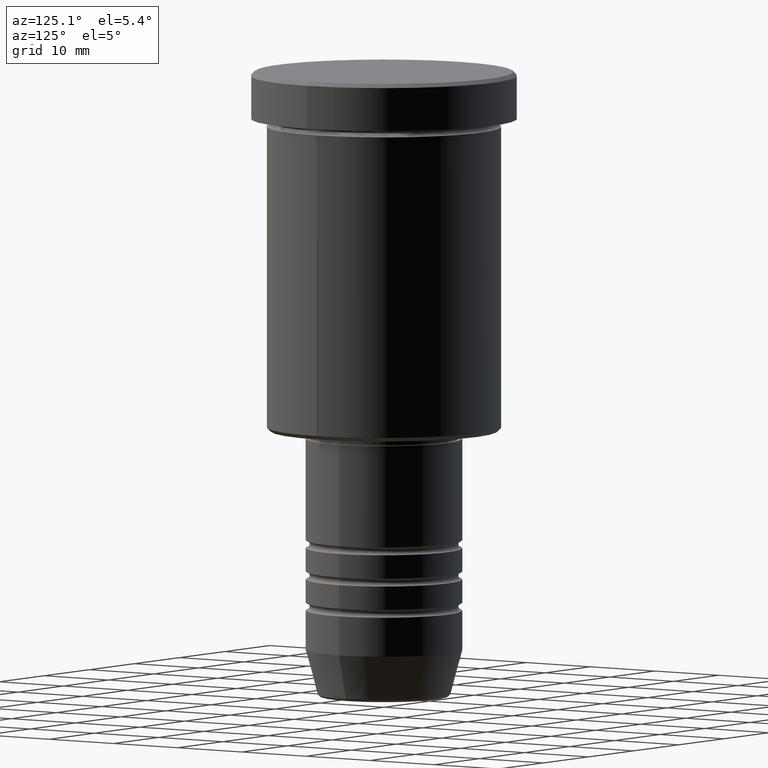
[diagram: clean part render]
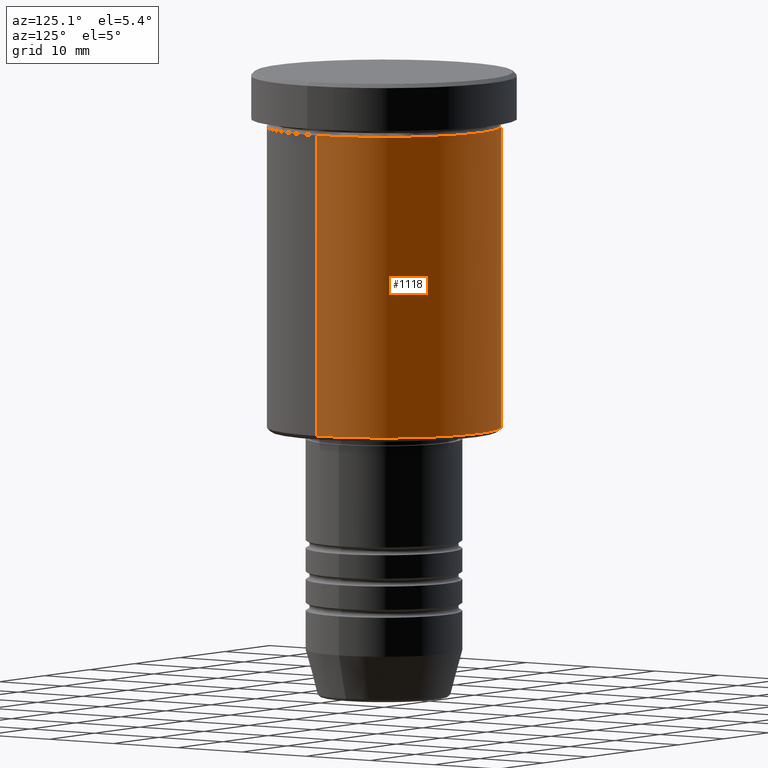
[diagram: same view with one face highlighted and labeled with its STEP entity id]
A machine part, auxiliary view. The second image highlights one B-rep face of the part: STEP entity #1118.
In plain terms, the highlighted cylindrical surface (partial cylindrical patch) has radius 15 mm, axis along (-0, -0, 1).
Its self-contained STEP definition (entity closure, byte-faithful):
#1 = EDGE_CURVE ( 'NONE', #1134, #399, #125, .T. ) ;
#26 = CIRCLE ( 'NONE', #527, 15.00000000000000000 ) ;
#51 = EDGE_CURVE ( 'NONE', #1134, #246, #26, .T. ) ;
#61 = AXIS2_PLACEMENT_3D ( 'NONE', #133, #440, #813 ) ;
#66 = CARTESIAN_POINT ( 'NONE',  ( -15.00000000000000000, 1.836970198721029589E-15, -45.50000000000000000 ) ) ;
#82 = LINE ( 'NONE', #549, #483 ) ;
#113 = FACE_OUTER_BOUND ( 'NONE', #771, .T. ) ;
#125 = LINE ( 'NONE', #887, #959 ) ;
#128 = CARTESIAN_POINT ( 'NONE',  ( 15.00000000000000000, 0.000000000000000000, -45.50000000000000000 ) ) ;
#133 = CARTESIAN_POINT ( 'NONE',  ( 0.000000000000000000, 0.000000000000000000, -6.999999999999995559 ) ) ;
#210 = DIRECTION ( 'NONE',  ( 1.000000000000000000, 0.000000000000000000, 0.000000000000000000 ) ) ;
#237 = ORIENTED_EDGE ( 'NONE', *, *, #51, .T. ) ;
#246 = VERTEX_POINT ( 'NONE', #66 ) ;
#303 = DIRECTION ( 'NONE',  ( -0.000000000000000000, -0.000000000000000000, 1.000000000000000000 ) ) ;
#379 = VERTEX_POINT ( 'NONE', #495 ) ;
#394 = CYLINDRICAL_SURFACE ( 'NONE', #859, 15.00000000000000000 ) ;
#399 = VERTEX_POINT ( 'NONE', #948 ) ;
#440 = DIRECTION ( 'NONE',  ( -0.000000000000000000, -0.000000000000000000, 1.000000000000000000 ) ) ;
#483 = VECTOR ( 'NONE', #905, 1000.000000000000000 ) ;
#495 = CARTESIAN_POINT ( 'NONE',  ( -15.00000000000000000, 1.836970198721029589E-15, -6.999999999999995559 ) ) ;
#527 = AXIS2_PLACEMENT_3D ( 'NONE', #1174, #550, #1078 ) ;
#530 = ORIENTED_EDGE ( 'NONE', *, *, #1006, .T. ) ;
#549 = CARTESIAN_POINT ( 'NONE',  ( -15.00000000000000000, 1.836970198721029589E-15, 0.000000000000000000 ) ) ;
#550 = DIRECTION ( 'NONE',  ( -0.000000000000000000, -0.000000000000000000, 1.000000000000000000 ) ) ;
#753 = ORIENTED_EDGE ( 'NONE', *, *, #809, .F. ) ;
#771 = EDGE_LOOP ( 'NONE', ( #237, #530, #753, #833 ) ) ;
#809 = EDGE_CURVE ( 'NONE', #399, #379, #1049, .T. ) ;
#813 = DIRECTION ( 'NONE',  ( 1.000000000000000000, 0.000000000000000000, 0.000000000000000000 ) ) ;
#833 = ORIENTED_EDGE ( 'NONE', *, *, #1, .F. ) ;
#859 = AXIS2_PLACEMENT_3D ( 'NONE', #1114, #303, #210 ) ;
#887 = CARTESIAN_POINT ( 'NONE',  ( 15.00000000000000000, 0.000000000000000000, 0.000000000000000000 ) ) ;
#905 = DIRECTION ( 'NONE',  ( -0.000000000000000000, -0.000000000000000000, 1.000000000000000000 ) ) ;
#948 = CARTESIAN_POINT ( 'NONE',  ( 15.00000000000000000, 0.000000000000000000, -6.999999999999995559 ) ) ;
#959 = VECTOR ( 'NONE', #1158, 1000.000000000000000 ) ;
#1006 = EDGE_CURVE ( 'NONE', #246, #379, #82, .T. ) ;
#1049 = CIRCLE ( 'NONE', #61, 15.00000000000000000 ) ;
#1078 = DIRECTION ( 'NONE',  ( -1.000000000000000000, 0.000000000000000000, 0.000000000000000000 ) ) ;
#1114 = CARTESIAN_POINT ( 'NONE',  ( 0.000000000000000000, 0.000000000000000000, 0.000000000000000000 ) ) ;
#1118 = ADVANCED_FACE ( 'NONE', ( #113 ), #394, .T. ) ;
#1134 = VERTEX_POINT ( 'NONE', #128 ) ;
#1158 = DIRECTION ( 'NONE',  ( -0.000000000000000000, -0.000000000000000000, 1.000000000000000000 ) ) ;
#1174 = CARTESIAN_POINT ( 'NONE',  ( 0.000000000000000000, 0.000000000000000000, -45.50000000000000000 ) ) ;